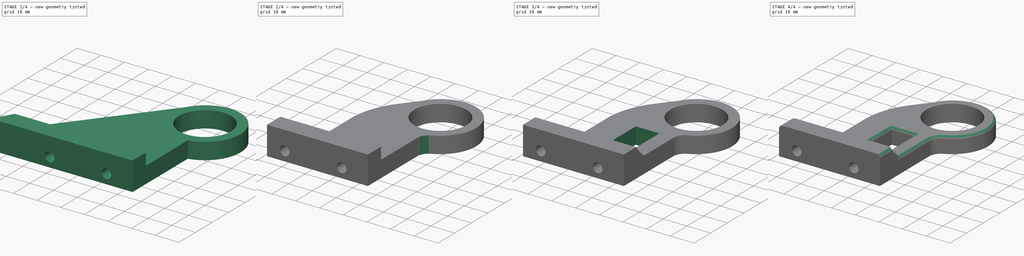
[diagram: build sequence overview — one tinted view per stage of 4, left to right]
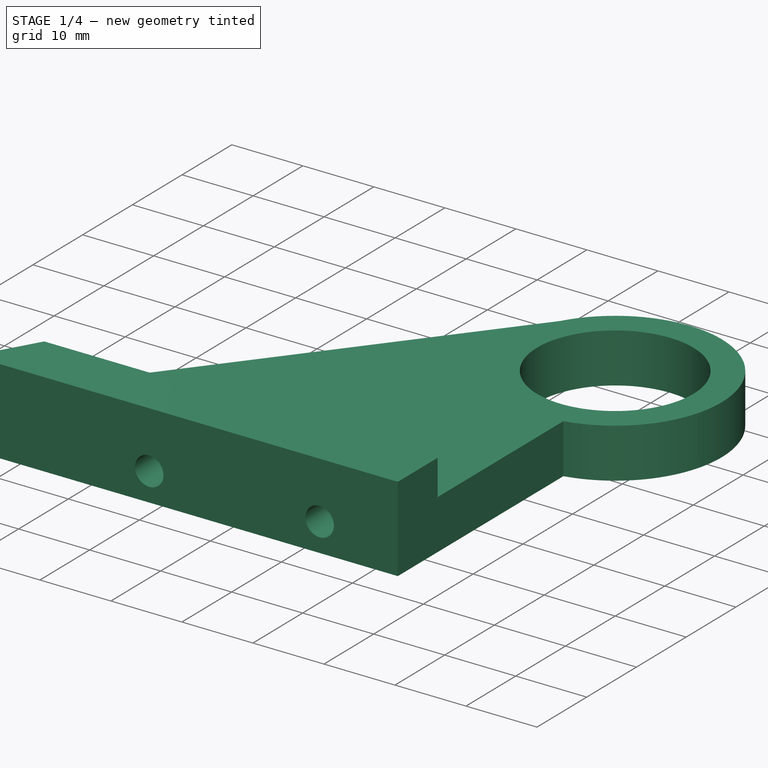
[diagram: stage 1 of 4 — iso view after this stage's code; geometry added in this stage tinted green]
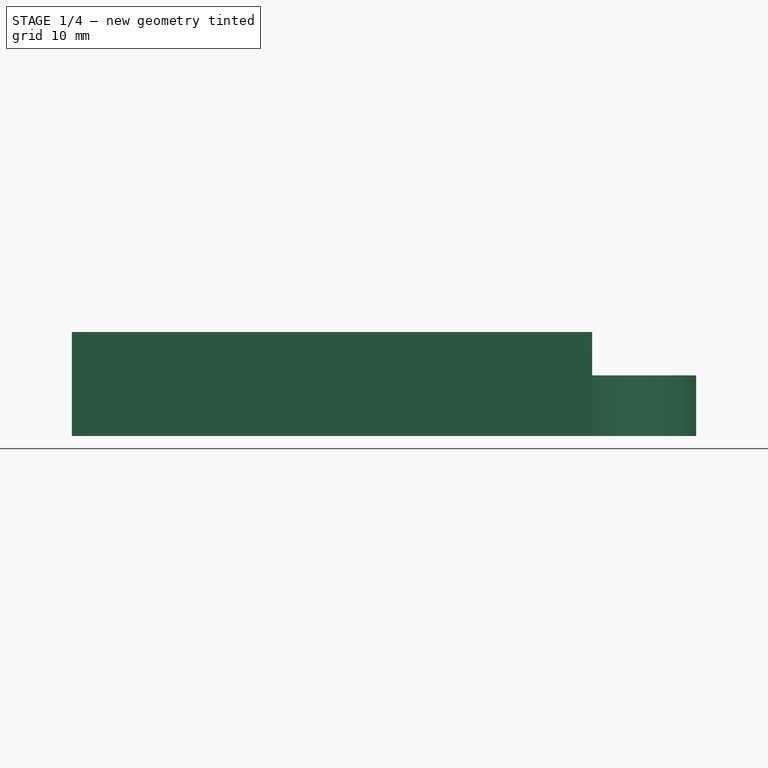
[diagram: stage 1 of 4 — front view after this stage's code; geometry added in this stage tinted green]
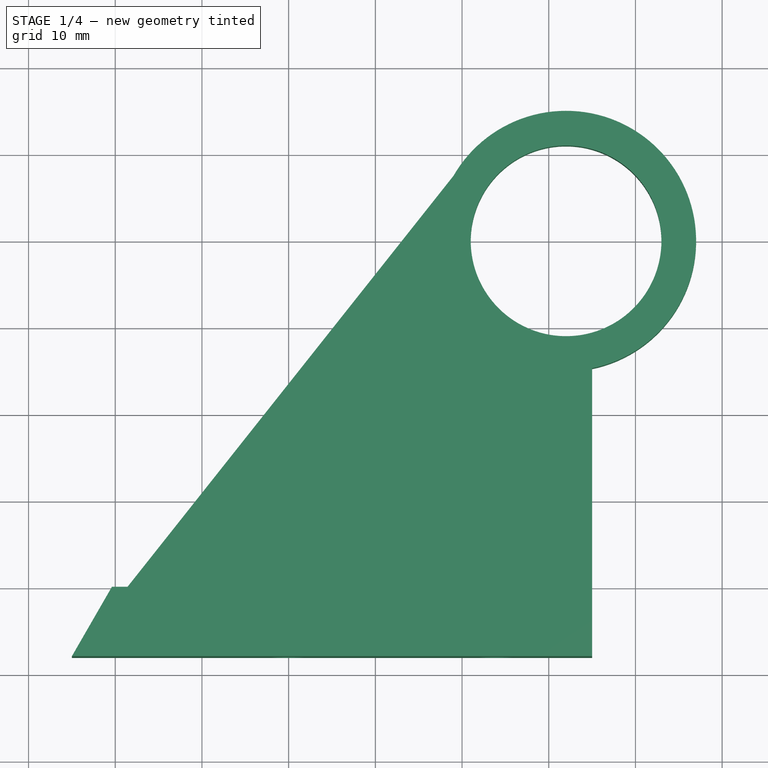
[diagram: stage 1 of 4 — top view after this stage's code; geometry added in this stage tinted green]
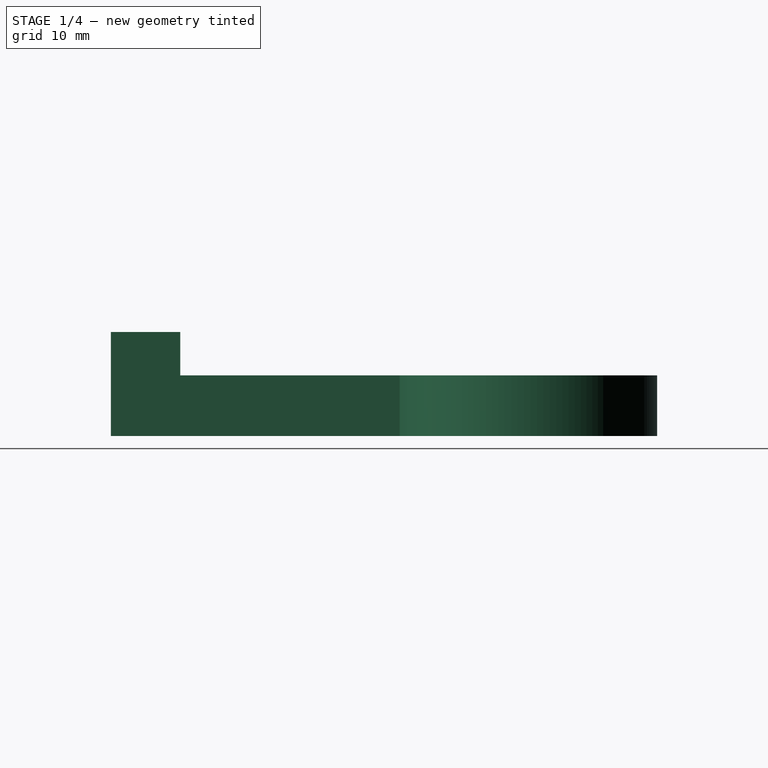
[diagram: stage 1 of 4 — right view after this stage's code; geometry added in this stage tinted green]
FCSTD DOCUMENT  (FreeCAD 1.0R39109 (Git))
Label: Стойка
License: All rights reserved
LicenseURL: https://en.wikipedia.org/wiki/All_rights_reserved
objects: PartDesign::Fillet×6, Sketcher::SketchObject×5, PartDesign::Pocket×3, PartDesign::Pad×2, PartDesign::Chamfer×1, PartDesign::Body×1, Measure::MeasureDistance×1
note: 47 computed .brp shape members not serialized (recipe doc carries the construction recipe); baked Part::Feature solids carry a one-line shape summary decoded from their .brp

FEATURE [Sketcher::SketchObject] Sketch
  ArcFitTolerance = 1e-06
  AttachmentSupport = -> [XY_Plane]
  FullyConstrained = false
  MakeInternals = false
  MapMode = 5
  sketch-geometry (7):
    g0: LineSegment StartX=-15 StartY=-48 StartZ=0 EndX=15 EndY=-48 EndZ=0
    g1: GeomPoint [constr] X=0 Y=0 Z=0
    g2: LineSegment StartX=-45 StartY=-48 StartZ=0 EndX=-15 EndY=-48 EndZ=0
    g3: LineSegment StartX=-45 StartY=-48 StartZ=0 EndX=-0.998465 EndY=7.48598 EndZ=0
    g4: Circle CenterX=12 CenterY=0 CenterZ=0 NormalX=0 NormalY=0 NormalZ=1 AngleXU=0 Radius=11
    g5: ArcOfCircle CenterX=12 CenterY=0 CenterZ=0 NormalX=0 NormalY=0 NormalZ=1 AngleXU=0 Radius=15 StartAngle=4.91375 EndAngle=8.90226
    g6: LineSegment StartX=15 StartY=-48 StartZ=0 EndX=15 EndY=-14.6969 EndZ=0
  constraints (12):
    c: Horizontal(g0)
    c: Horizontal(g2)
    c: Distance(g2,g2) = 30
    c: Diameter(g4) = 22
    c: DistanceX(g4) = 12
    c: DistanceY(g4) = 0
    c: Diameter(g5) = 30
    c: Coincident(g5,g4)
    c: Vertical(g6)
    c: Coincident(g6,g0)
    c: Coincident(g5,g3)
    c: Coincident(g5,g6)
FEATURE [PartDesign::Pad] Pad
  Direction = (0,0,1)
  Length = 7
  Length2 = 10
  Profile = -> Sketch
  ReferenceAxis = -> Sketch [N_Axis]
  Refine = true
  Suppressed = false
  Type = 0
FEATURE [Sketcher::SketchObject] Sketch001
  ArcFitTolerance = 1e-06
  AttachmentSupport = -> [Pad]
  FullyConstrained = false
  MakeInternals = false
  MapMode = 5
  Placement = pos=(0,0,7) rot=(0,0,1;0rad)
  sketch-geometry (5):
    g0: GeomPoint [constr] X=0 Y=0 Z=0
    g1: LineSegment StartX=-45 StartY=-48 StartZ=0 EndX=-40.3859 EndY=-40 EndZ=0
    g2: LineSegment StartX=15 StartY=-48 StartZ=0 EndX=15 EndY=-40 EndZ=0
    g3: LineSegment StartX=15 StartY=-40 StartZ=0 EndX=-40.3859 EndY=-40 EndZ=0
    g4: LineSegment StartX=-45 StartY=-48 StartZ=0 EndX=15 EndY=-48 EndZ=0
  constraints (8):
    c: Coincident(g2,g3)
    c: Coincident(g4,g2)
    c: Vertical(g2)
    c: Horizontal(g3)
    c: Horizontal(g4)
    c: Distance(g2,g4) = 60
    c: Distance(g3,g4) = 8
    c: Coincident(g3,g1)
FEATURE [PartDesign::Pad] Pad001
  BaseFeature = -> Pad
  Direction = (0,0,1)
  Length = 5
  Length2 = 10
  Profile = -> Sketch001
  ReferenceAxis = -> Sketch001 [N_Axis]
  Refine = true
  Suppressed = false
  Type = 0
FEATURE [Sketcher::SketchObject] Sketch002
  ArcFitTolerance = 1e-06
  AttachmentSupport = -> [Pad001]
  FullyConstrained = true
  MakeInternals = false
  MapMode = 5
  Placement = pos=(0,-48,0) rot=(1,0,0;1.5708rad)
  sketch-geometry (2):
    g0: Circle CenterX=-20 CenterY=4 CenterZ=0 NormalX=0 NormalY=0 NormalZ=1 AngleXU=0 Radius=2
    g1: Circle CenterX=4 CenterY=4 CenterZ=0 NormalX=0 NormalY=0 NormalZ=1 AngleXU=0 Radius=2
  constraints (6):
    c: Diameter(g0) = 4
    c: DistanceX(g0) = -20
    c: DistanceY(g0) = 4
    c: Diameter(g1) = 4
    c: DistanceX(g1) = 4
    c: DistanceY(g1) = 4
FEATURE [PartDesign::Pocket] Pocket
  BaseFeature = -> Pad001
  Direction = (0,1,-2e-16)
  Length = 9
  Length2 = 5
  Profile = -> Sketch002
  ReferenceAxis = -> Sketch002 [N_Axis]
  Refine = true
  Suppressed = false
  Type = 0
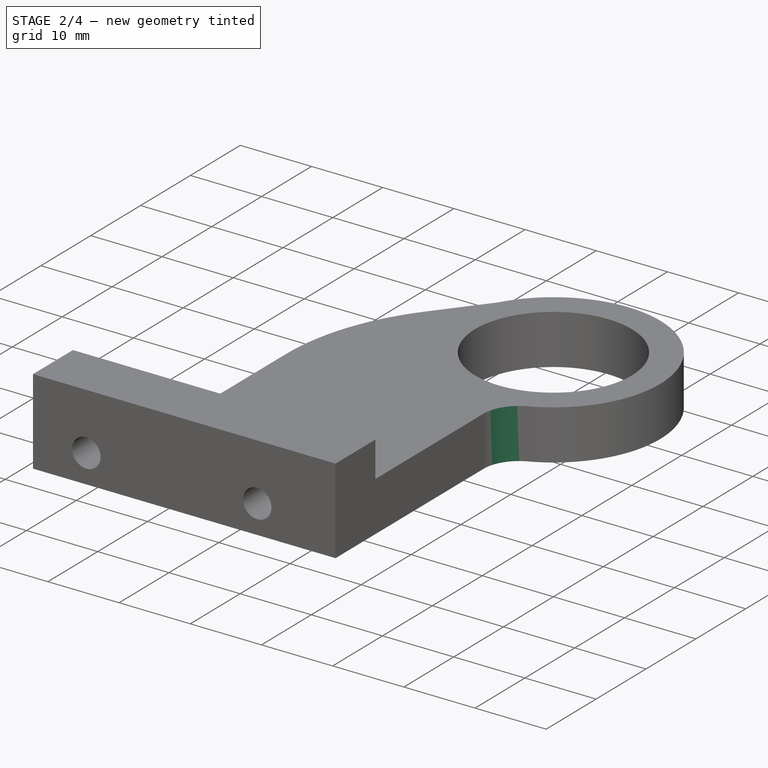
[diagram: stage 2 of 4 — iso view after this stage's code; geometry added in this stage tinted green]
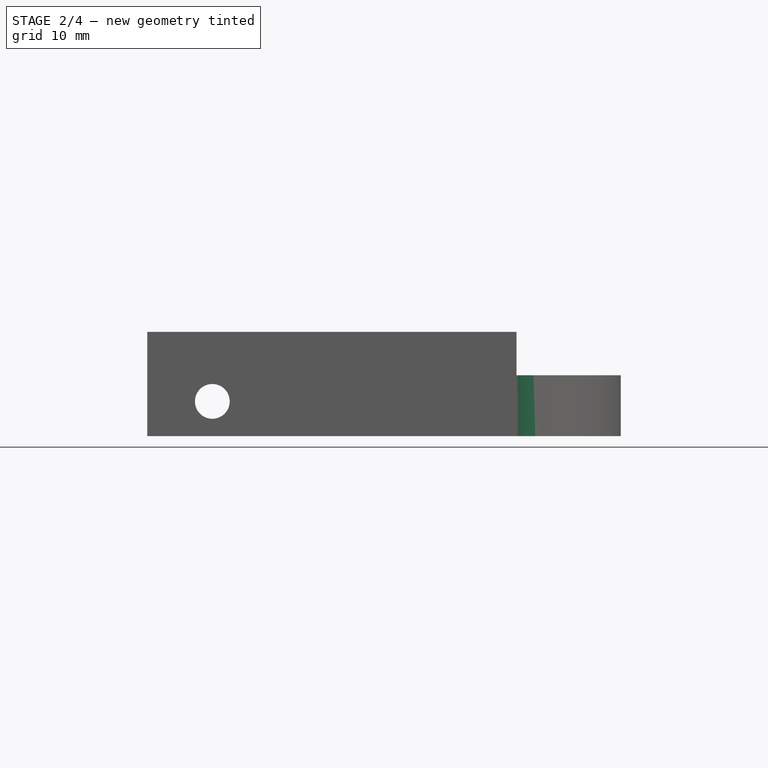
[diagram: stage 2 of 4 — front view after this stage's code; geometry added in this stage tinted green]
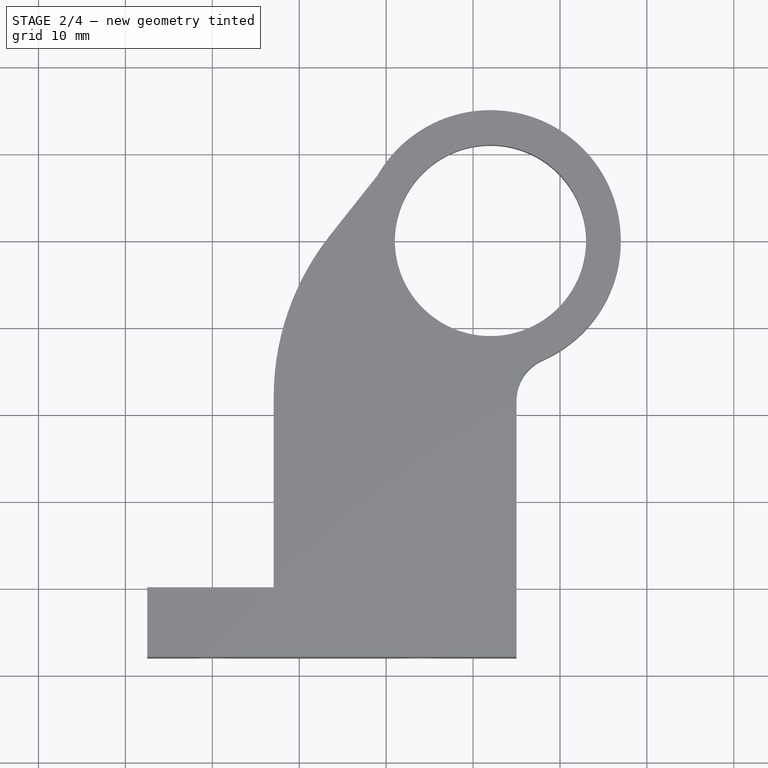
[diagram: stage 2 of 4 — top view after this stage's code; geometry added in this stage tinted green]
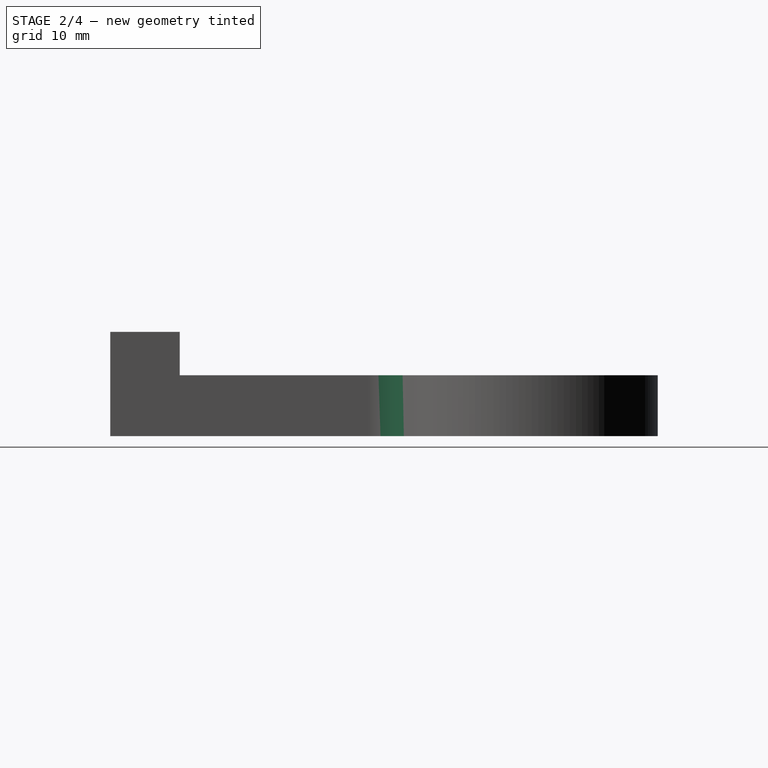
[diagram: stage 2 of 4 — right view after this stage's code; geometry added in this stage tinted green]
FEATURE [Sketcher::SketchObject] Sketch004
  ArcFitTolerance = 1e-06
  FullyConstrained = false
  MakeInternals = false
  MapMode = 5
  Placement = pos=(0,0,12) rot=(0,0,1;0rad)
  sketch-geometry (8):
    g0: LineSegment StartX=-27.4925 StartY=-50.5518 StartZ=0 EndX=-27.4925 EndY=-40 EndZ=0
    g1: LineSegment StartX=-27.4925 StartY=11.9342 StartZ=0 EndX=-46.8362 EndY=11.9342 EndZ=0
    g2: LineSegment StartX=-46.8362 StartY=11.9342 StartZ=0 EndX=-46.8362 EndY=-50.5518 EndZ=0
    g3: LineSegment StartX=-46.8362 StartY=-50.5518 StartZ=0 EndX=-27.4925 EndY=-50.5518 EndZ=0
    g4: LineSegment StartX=-27.4925 StartY=-40 StartZ=0 EndX=-12.9425 EndY=-40 EndZ=0
    g5: LineSegment StartX=-12.9425 StartY=-40 StartZ=0 EndX=-12.9425 EndY=0 EndZ=0
    g6: LineSegment StartX=-12.9425 StartY=0 StartZ=0 EndX=-27.4925 EndY=0 EndZ=0
    g7: LineSegment StartX=-27.4925 StartY=0 StartZ=0 EndX=-27.4925 EndY=11.9342 EndZ=0
  constraints (16):
    c: Coincident(g7,g1)
    c: Coincident(g1,g2)
    c: Coincident(g2,g3)
    c: Coincident(g3,g0)
    c: Vertical(g0)
    c: Vertical(g2)
    c: Horizontal(g1)
    c: Horizontal(g3)
    c: Coincident(g4,g5)
    c: Coincident(g5,g6)
    c: Horizontal(g4)
    c: Horizontal(g6)
    c: Vertical(g5)
    c: PointOnObject(g5,g-1)
    c: Coincident(g4,g0)
    c: Coincident(g6,g7)
FEATURE [PartDesign::Pocket] Pocket002
  BaseFeature = -> Pocket
  Direction = (0,0,-1)
  Length = 20
  Length2 = 5
  Profile = -> Sketch004
  ReferenceAxis = -> Sketch004 [N_Axis]
  Refine = true
  Suppressed = false
  Type = 0
FEATURE [PartDesign::Fillet] Fillet
  Base = -> Pocket002 [Edge12]
  BaseFeature = -> Pocket002
  Radius = 30
  Refine = true
  SupportTransform = false
  Suppressed = false
  UseAllEdges = false
FEATURE [PartDesign::Fillet] Fillet001
  Base = -> Fillet [Edge15]
  BaseFeature = -> Fillet
  Radius = 5
  Refine = true
  SupportTransform = false
  Suppressed = false
  UseAllEdges = false
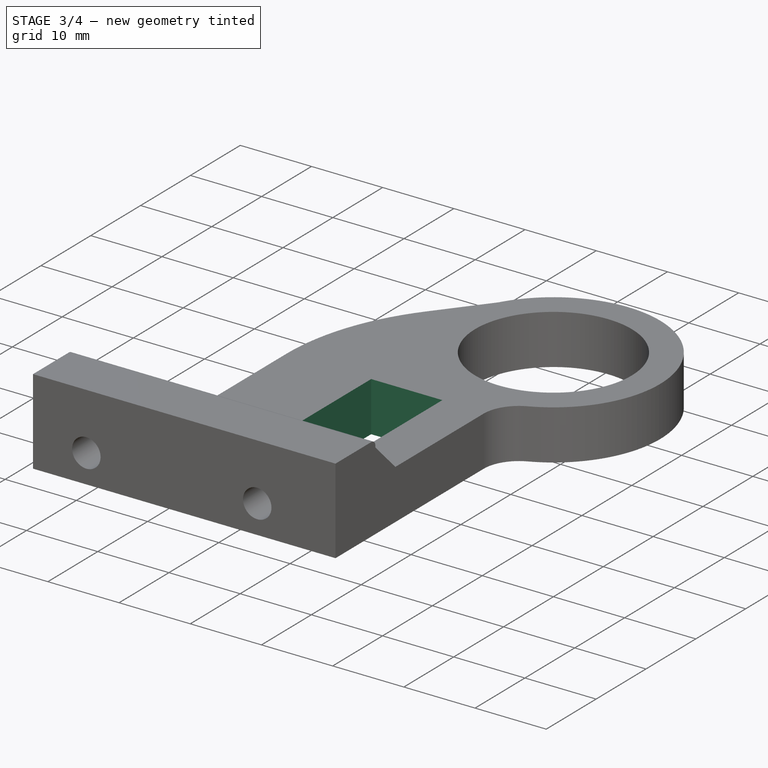
[diagram: stage 3 of 4 — iso view after this stage's code; geometry added in this stage tinted green]
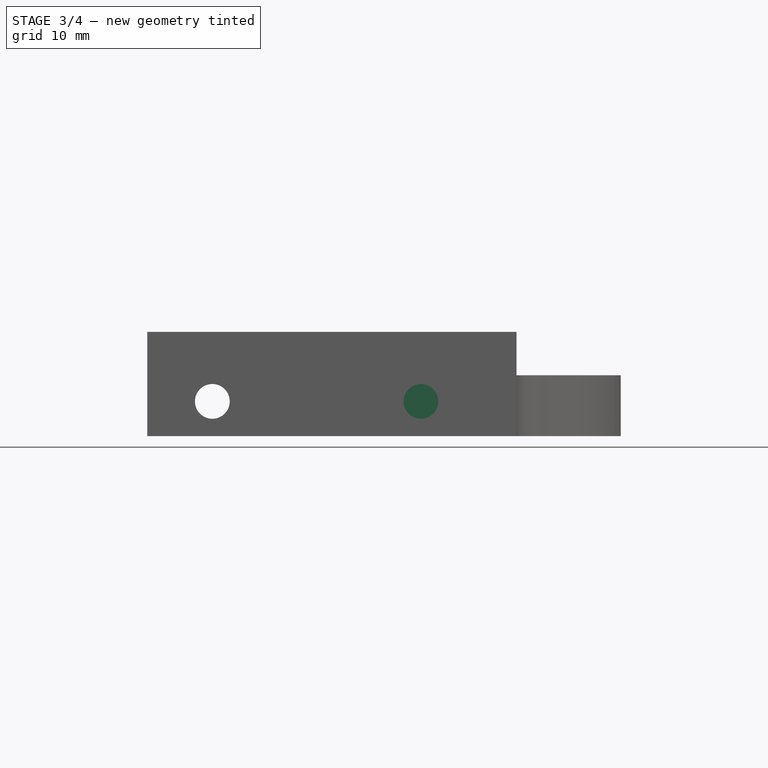
[diagram: stage 3 of 4 — front view after this stage's code; geometry added in this stage tinted green]
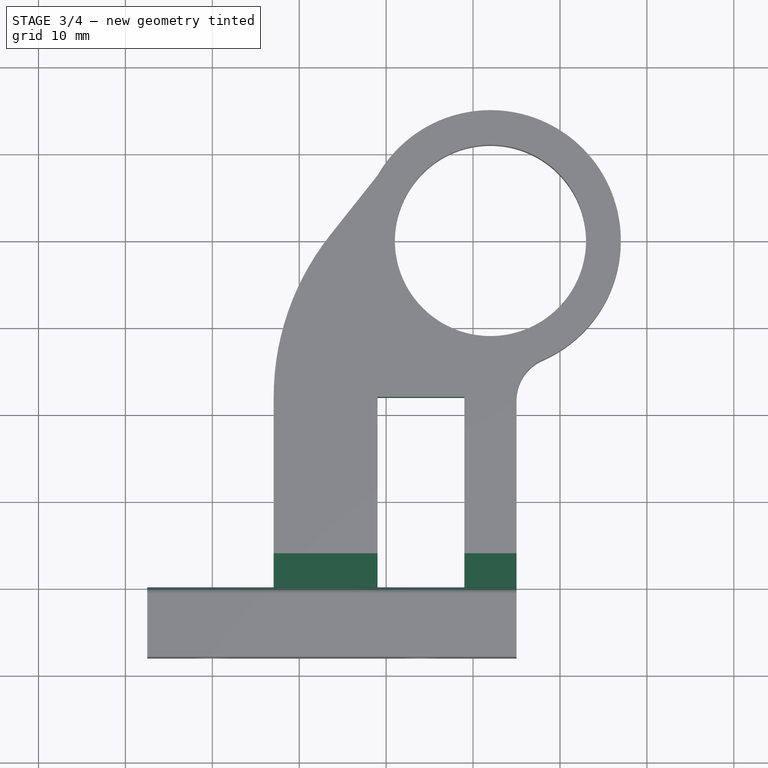
[diagram: stage 3 of 4 — top view after this stage's code; geometry added in this stage tinted green]
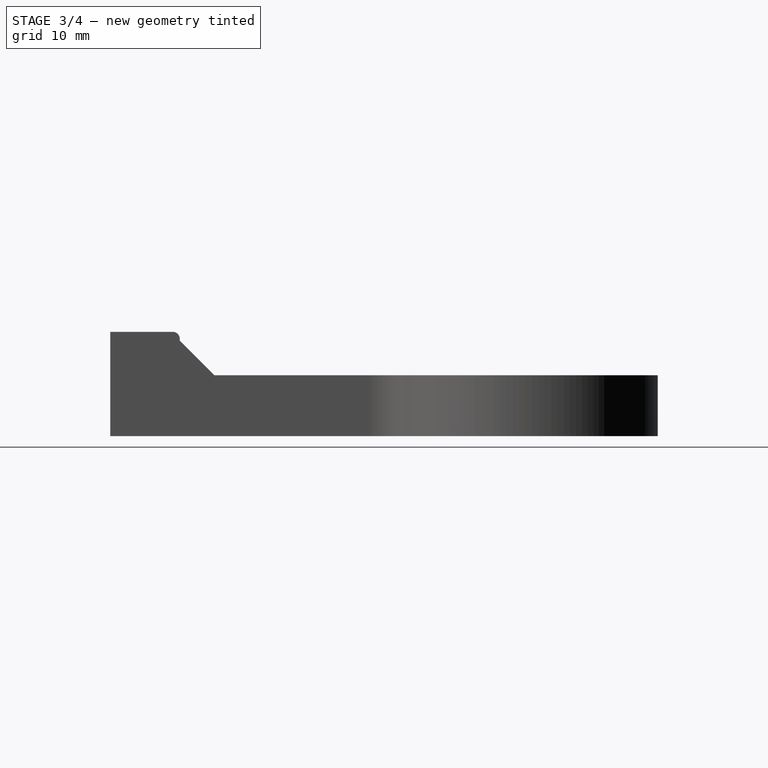
[diagram: stage 3 of 4 — right view after this stage's code; geometry added in this stage tinted green]
FEATURE [Sketcher::SketchObject] Sketch005
  ArcFitTolerance = 1e-06
  AttachmentSupport = -> [Fillet001]
  FullyConstrained = false
  MakeInternals = false
  MapMode = 5
  Placement = pos=(0,0,7) rot=(0,0,1;0rad)
  sketch-geometry (4):
    g0: LineSegment StartX=8.99969 StartY=-40.0023 StartZ=0 EndX=8.99969 EndY=-18.0023 EndZ=0
    g1: LineSegment StartX=8.99969 StartY=-18.0023 StartZ=0 EndX=-1.00031 EndY=-18.0023 EndZ=0
    g2: LineSegment StartX=-1.00031 StartY=-18.0023 StartZ=0 EndX=-1.00031 EndY=-40.0023 EndZ=0
    g3: LineSegment StartX=-1.00031 StartY=-40.0023 StartZ=0 EndX=8.99969 EndY=-40.0023 EndZ=0
  constraints (10):
    c: Coincident(g0,g1)
    c: Coincident(g1,g2)
    c: Coincident(g2,g3)
    c: Coincident(g3,g0)
    c: Vertical(g0)
    c: Vertical(g2)
    c: Horizontal(g1)
    c: Horizontal(g3)
    c: Distance(g0,g2) = 10
    c: Distance(g1,g3) = 22
FEATURE [PartDesign::Pocket] Pocket003
  BaseFeature = -> Fillet001
  Direction = (0,0,-1)
  Length = 15
  Length2 = 5
  Profile = -> Sketch005
  ReferenceAxis = -> Sketch005 [N_Axis]
  Refine = true
  Suppressed = false
  Type = 0
FEATURE [PartDesign::Chamfer] Chamfer
  Angle = 45
  Base = -> Pocket003 [Edge38,Edge36]
  BaseFeature = -> Pocket003
  ChamferType = 0
  FlipDirection = false
  Refine = true
  Size = 4
  Size2 = 1
  SupportTransform = false
  Suppressed = false
  UseAllEdges = false
FEATURE [PartDesign::Fillet] Fillet002
  Base = -> Chamfer [Edge23]
  BaseFeature = -> Chamfer
  Radius = 0.8
  Refine = true
  SupportTransform = false
  Suppressed = false
  UseAllEdges = false
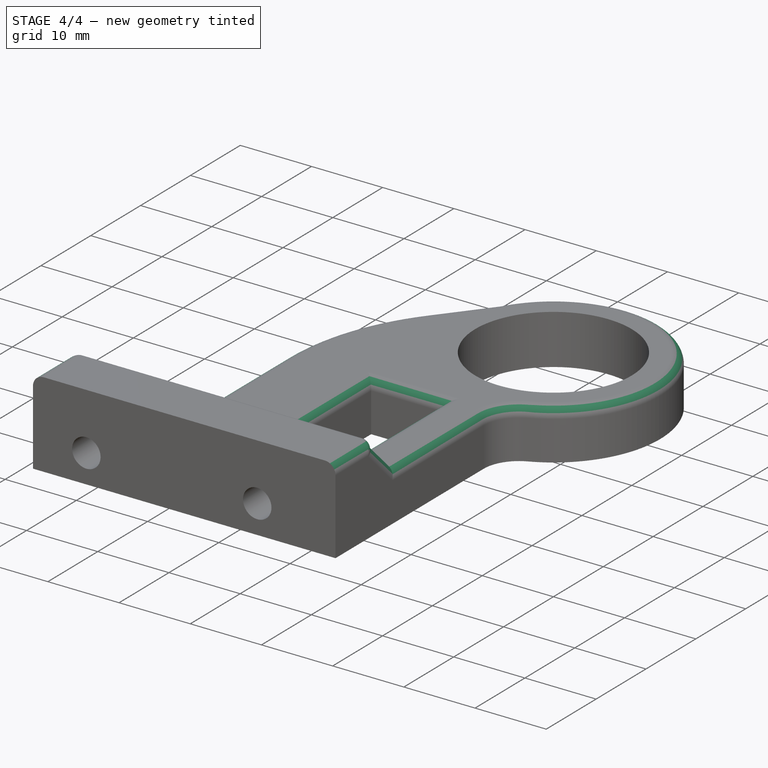
[diagram: stage 4 of 4 — iso view after this stage's code; geometry added in this stage tinted green]
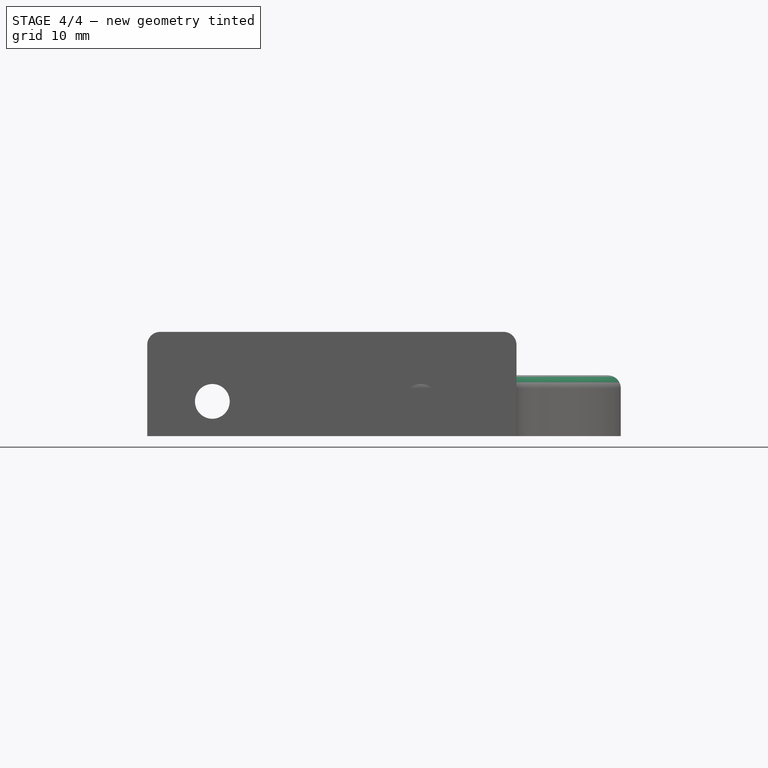
[diagram: stage 4 of 4 — front view after this stage's code; geometry added in this stage tinted green]
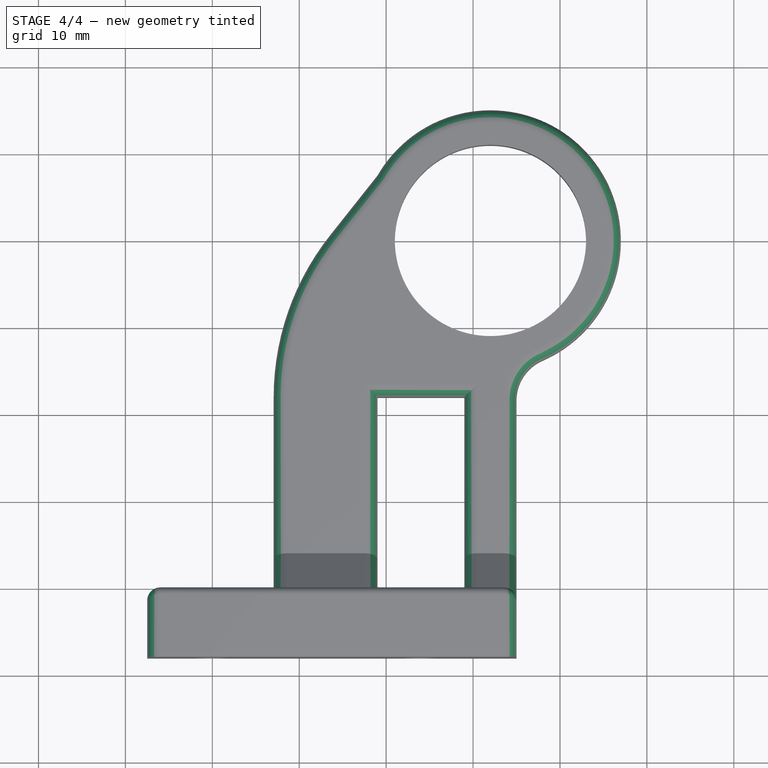
[diagram: stage 4 of 4 — top view after this stage's code; geometry added in this stage tinted green]
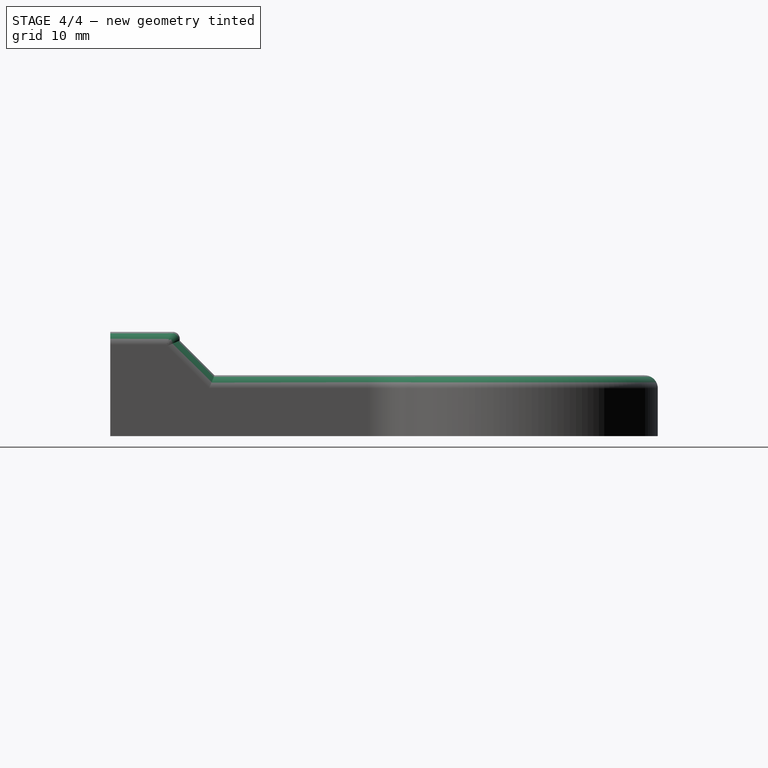
[diagram: stage 4 of 4 — right view after this stage's code; geometry added in this stage tinted green]
FEATURE [PartDesign::Fillet] Fillet003
  Base = -> Fillet002 [Edge24,Edge21,Edge11]
  BaseFeature = -> Fillet002
  Radius = 1.5
  Refine = true
  SupportTransform = false
  Suppressed = false
  UseAllEdges = false
FEATURE [PartDesign::Fillet] Fillet004
  Base = -> Fillet003 [Edge40,Edge39,Edge65,Edge64,Edge62,Edge61,Edge21,Edge19,Edge3,Edge14,Edge20]
  BaseFeature = -> Fillet003
  Radius = 1.5
  Refine = true
  SupportTransform = false
  Suppressed = false
  UseAllEdges = false
FEATURE [PartDesign::Fillet] Fillet005
  Base = -> Fillet004 [Edge49,Edge48,Edge74,Edge39,Edge24]
  BaseFeature = -> Fillet004
  Radius = 1.5
  Refine = true
  SupportTransform = false
  Suppressed = false
  UseAllEdges = false
FEATURE [PartDesign::Body] Body  label="Тело"
  AllowCompound = false
  Group = -> [Sketch,Pad,Sketch001,Pad001,Sketch002,Pocket,Sketch004,Pocket002,Fillet,Fillet001,Sketch005,Pocket003,Chamfer,Fillet002,Fillet003,Fillet004,Fillet005]
  Origin = -> Origin
  Tip = -> Fillet005
FEATURE [Measure::MeasureDistance] Distance  label="Distance: 33,00 mm"
  Distance = 33
  DistanceX = 33
  DistanceY = 0
  DistanceZ = 0
  Element1 = -> Body [Fillet005.Edge76]
  Element2 = -> Body [Fillet005.Edge61]
  Position1 = (15,-48,4)
  Position2 = (-18,-48,4)
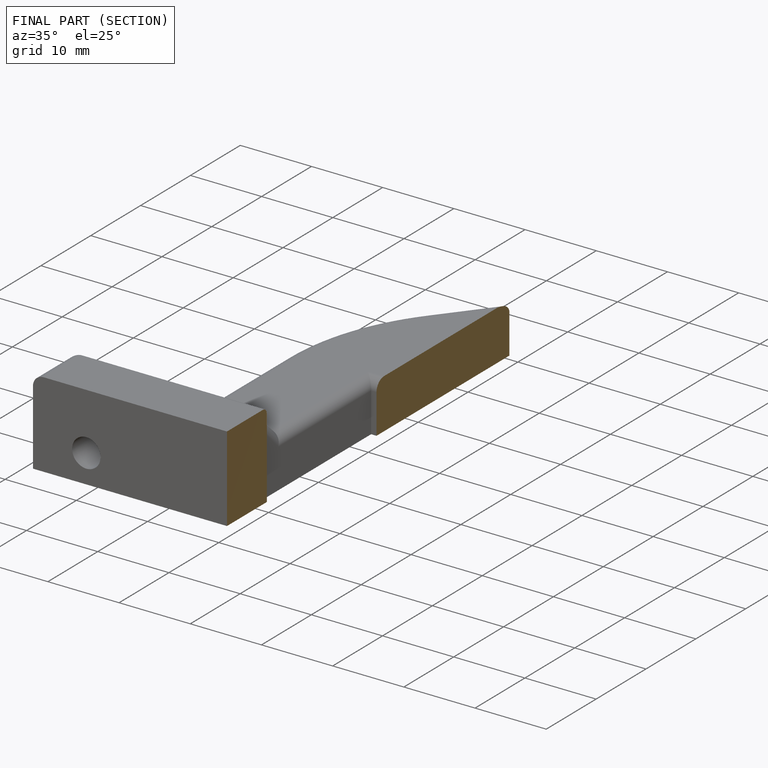
[diagram: finished part — half-section view (interior)]
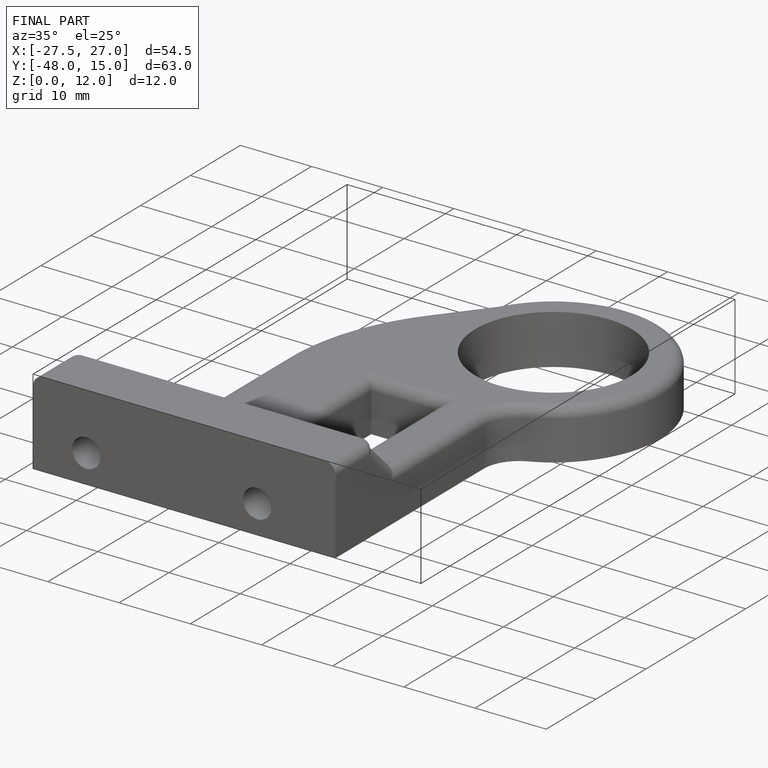
[diagram: finished part — iso view with bounding-box wireframe]
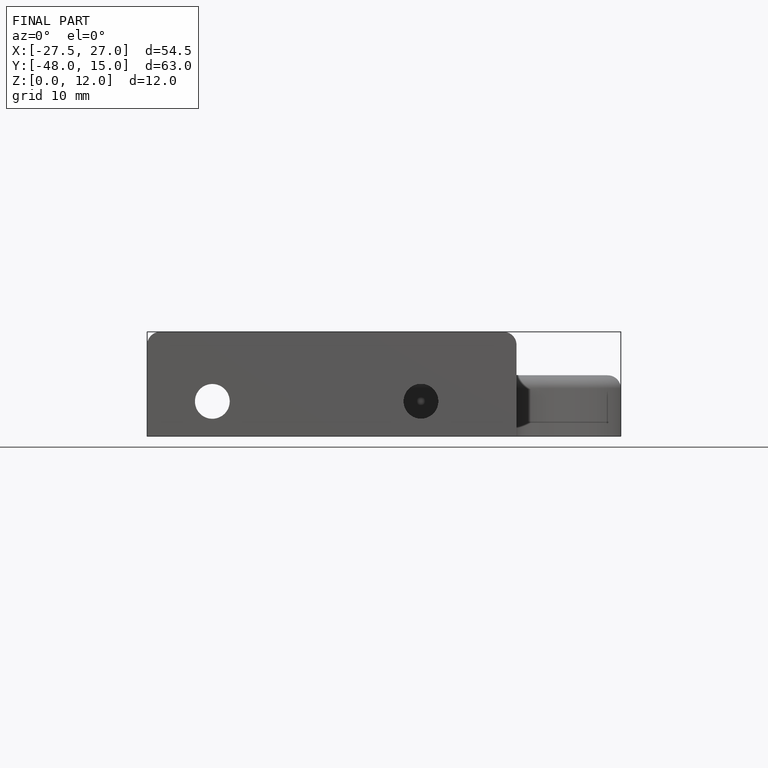
[diagram: finished part — front view with bounding-box wireframe]
